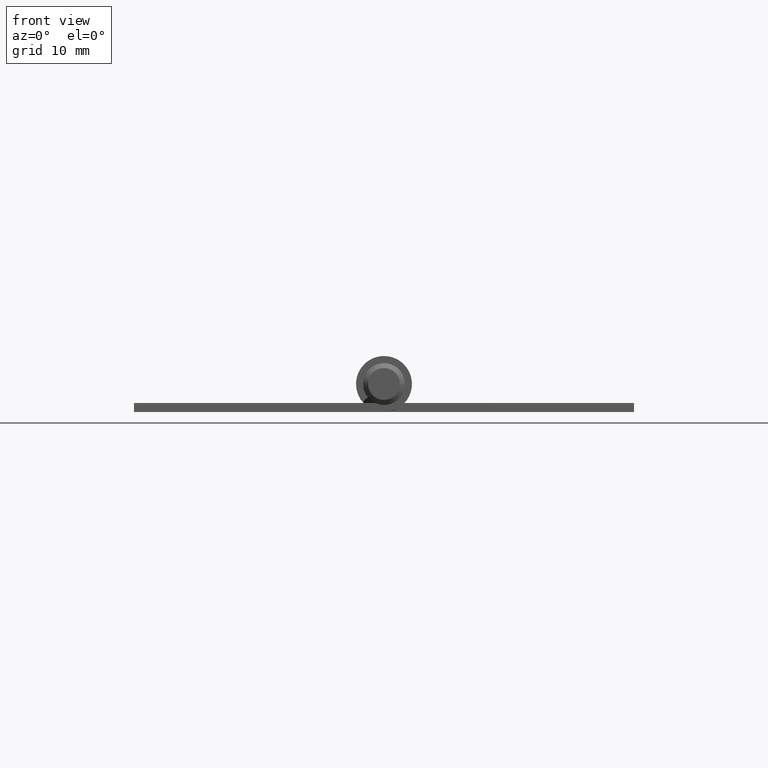
[diagram: clean part render]
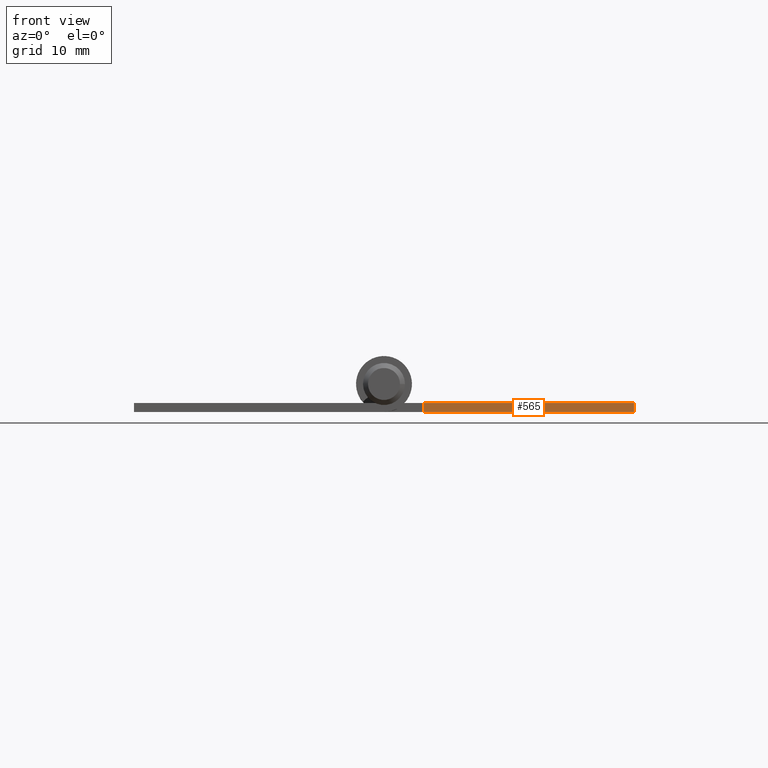
[diagram: same view with one face highlighted and labeled with its STEP entity id]
A machine part, front view. The second image highlights one B-rep face of the part: STEP entity #565.
In plain terms, the highlighted planar face has unit normal (0, 1, 0).
Its self-contained STEP definition (entity closure, byte-faithful):
#362 = FACE_OUTER_BOUND ( 'NONE', #5504, .T. ) ;
#565 = ADVANCED_FACE ( 'NONE', ( #362 ), #2708, .F. ) ;
#606 = DIRECTION ( 'NONE',  ( -0.000000000000000000, -0.000000000000000000, 1.000000000000000000 ) ) ;
#748 = VERTEX_POINT ( 'NONE', #1280 ) ;
#1065 = EDGE_CURVE ( 'NONE', #8774, #3584, #8665, .T. ) ;
#1123 = CARTESIAN_POINT ( 'NONE',  ( -2.800000000000000266, 25.00000000000000000, 0.000000000000000000 ) ) ;
#1280 = CARTESIAN_POINT ( 'NONE',  ( -6.799999999999993605, 25.00000000000000000, 5.030698080332733671E-16 ) ) ;
#1410 = AXIS2_PLACEMENT_3D ( 'NONE', #6877, #1740, #2672 ) ;
#1412 = CARTESIAN_POINT ( 'NONE',  ( -27.79999999999999716, 25.00000000000000000, 0.9000000000000029088 ) ) ;
#1570 = LINE ( 'NONE', #1123, #2083 ) ;
#1740 = DIRECTION ( 'NONE',  ( 0.000000000000000000, -1.000000000000000000, 0.000000000000000000 ) ) ;
#2083 = VECTOR ( 'NONE', #7935, 1000.000000000000000 ) ;
#2468 = ORIENTED_EDGE ( 'NONE', *, *, #1065, .T. ) ;
#2672 = DIRECTION ( 'NONE',  ( 0.000000000000000000, -0.000000000000000000, -1.000000000000000000 ) ) ;
#2708 = PLANE ( 'NONE',  #1410 ) ;
#2740 = LINE ( 'NONE', #1412, #10159 ) ;
#2914 = VERTEX_POINT ( 'NONE', #10602 ) ;
#3347 = ORIENTED_EDGE ( 'NONE', *, *, #6515, .T. ) ;
#3584 = VERTEX_POINT ( 'NONE', #5859 ) ;
#4185 = LINE ( 'NONE', #6343, #9584 ) ;
#5504 = EDGE_LOOP ( 'NONE', ( #2468, #7655, #3347, #7372 ) ) ;
#5859 = CARTESIAN_POINT ( 'NONE',  ( -6.799999999999995381, 25.00000000000000000, 0.9000000000000014655 ) ) ;
#6138 = DIRECTION ( 'NONE',  ( 1.000000000000000000, -0.000000000000000000, -1.127570259384924858E-16 ) ) ;
#6343 = CARTESIAN_POINT ( 'NONE',  ( -6.799999999999995381, 25.00000000000000000, 2.800000000000000711 ) ) ;
#6455 = DIRECTION ( 'NONE',  ( -1.301042606982605321E-16, 0.000000000000000000, -1.000000000000000000 ) ) ;
#6515 = EDGE_CURVE ( 'NONE', #748, #2914, #1570, .T. ) ;
#6877 = CARTESIAN_POINT ( 'NONE',  ( -2.799999999999999822, 25.00000000000000000, 2.800000000000000266 ) ) ;
#7034 = VECTOR ( 'NONE', #6138, 1000.000000000000000 ) ;
#7220 = EDGE_CURVE ( 'NONE', #2914, #8774, #2740, .T. ) ;
#7372 = ORIENTED_EDGE ( 'NONE', *, *, #7220, .T. ) ;
#7655 = ORIENTED_EDGE ( 'NONE', *, *, #9132, .T. ) ;
#7935 = DIRECTION ( 'NONE',  ( -1.000000000000000000, 0.000000000000000000, 1.257674520083185390E-16 ) ) ;
#8665 = LINE ( 'NONE', #9502, #7034 ) ;
#8774 = VERTEX_POINT ( 'NONE', #10017 ) ;
#9132 = EDGE_CURVE ( 'NONE', #3584, #748, #4185, .T. ) ;
#9502 = CARTESIAN_POINT ( 'NONE',  ( -2.800000000000000266, 25.00000000000000000, 0.9000000000000001332 ) ) ;
#9584 = VECTOR ( 'NONE', #6455, 1000.000000000000000 ) ;
#10017 = CARTESIAN_POINT ( 'NONE',  ( -27.79999999999999716, 25.00000000000000000, 0.9000000000000029088 ) ) ;
#10159 = VECTOR ( 'NONE', #606, 1000.000000000000000 ) ;
#10602 = CARTESIAN_POINT ( 'NONE',  ( -27.79999999999999716, 25.00000000000000000, 3.144186300207962859E-15 ) ) ;